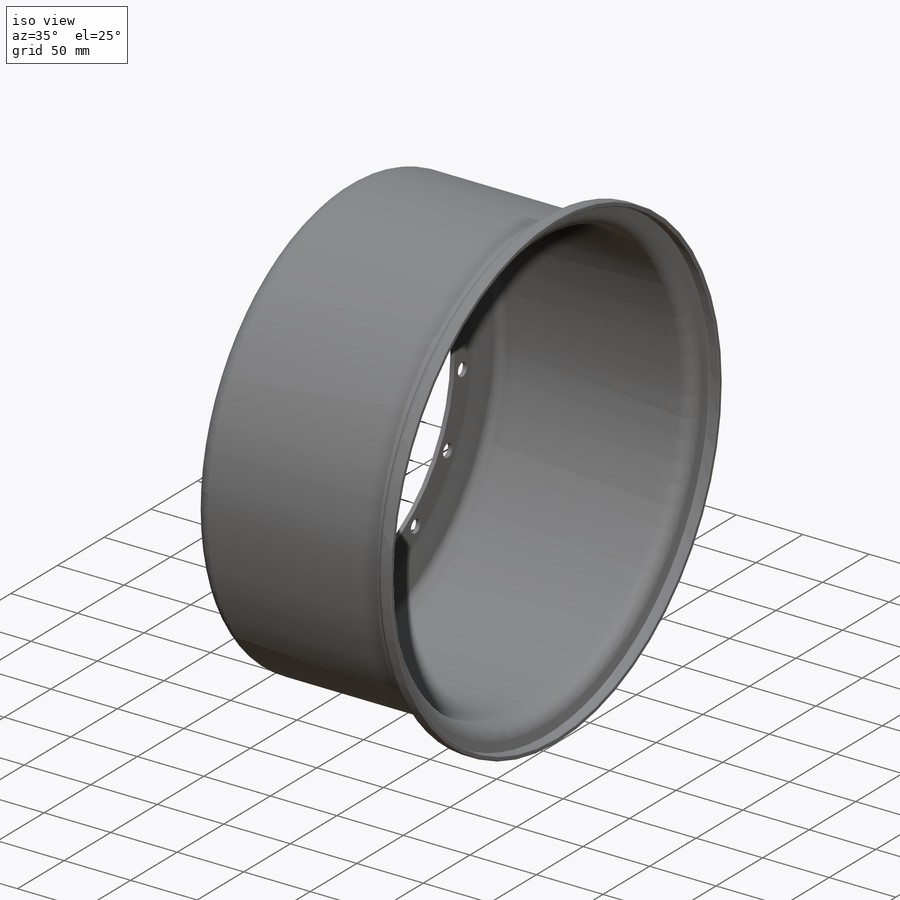
[diagram: iso view]
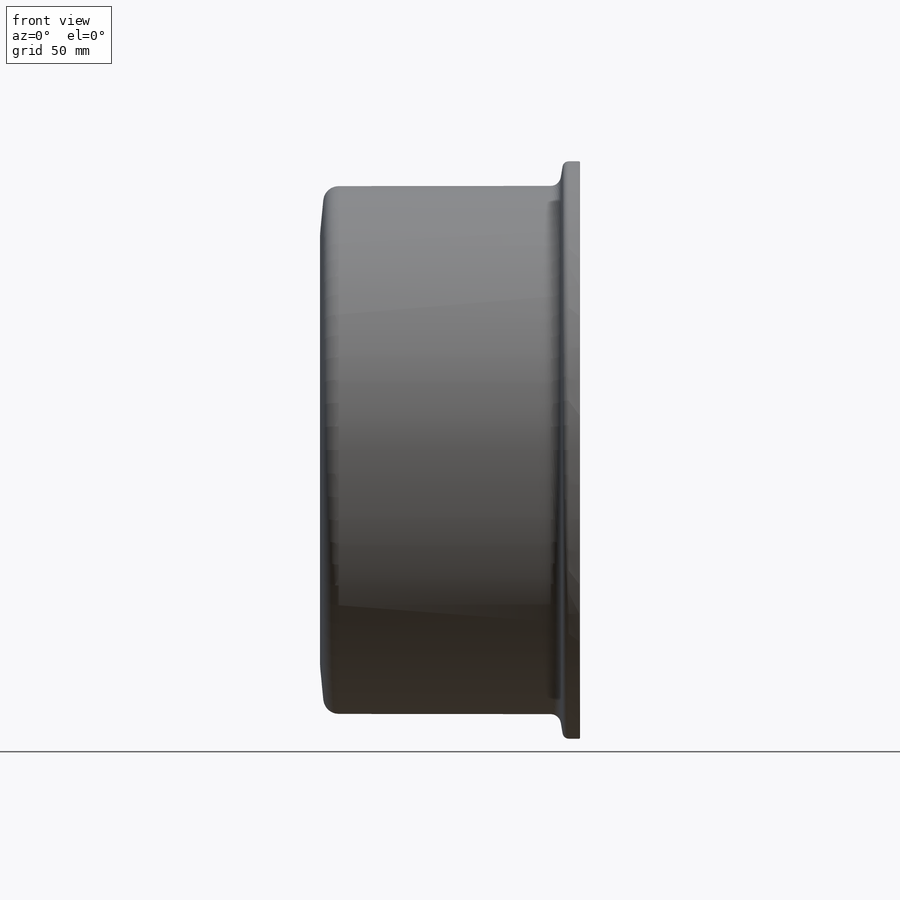
[diagram: front view]
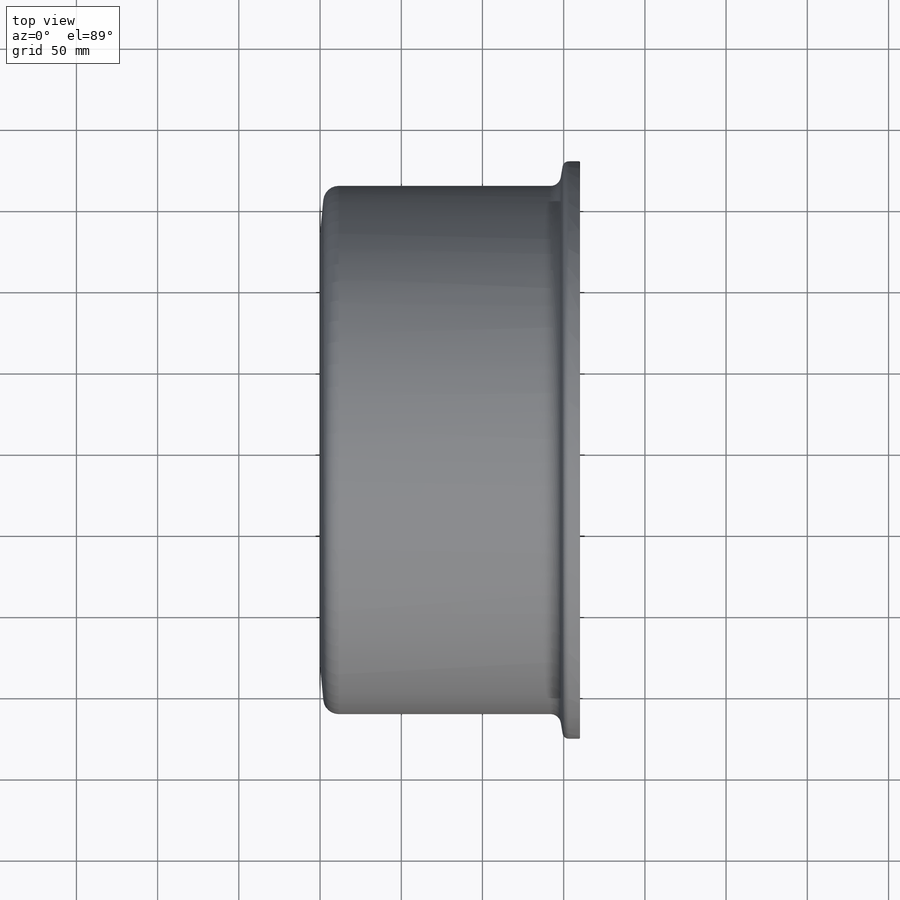
[diagram: top view]
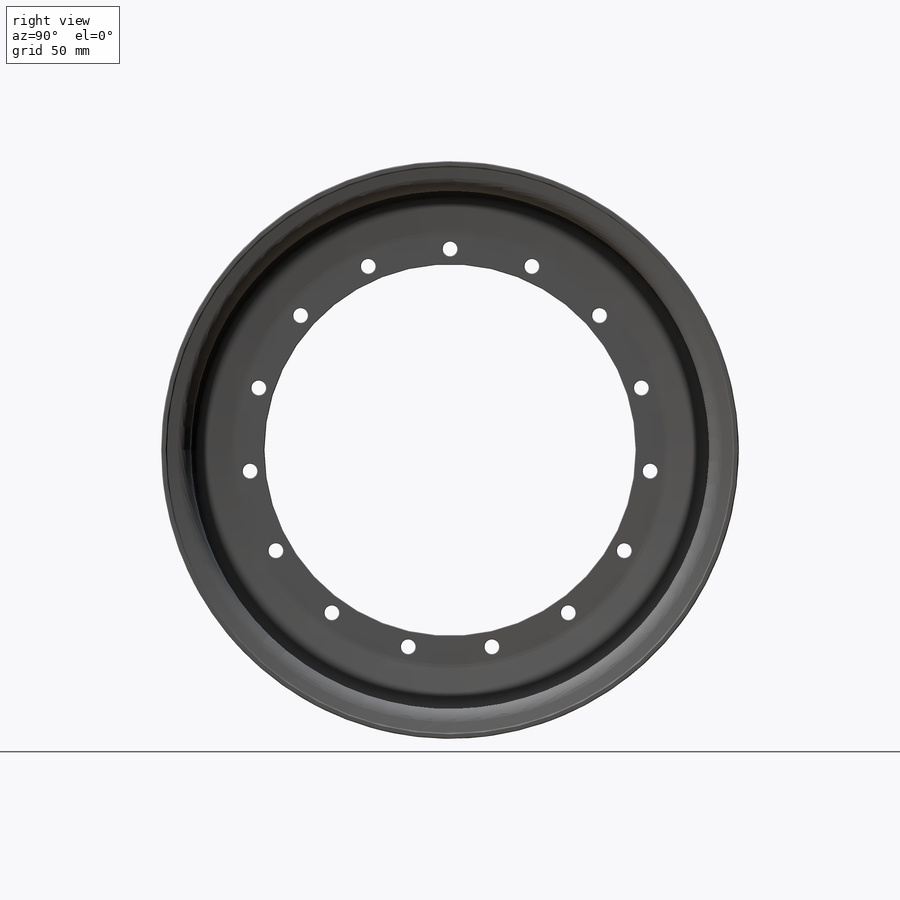
[diagram: right view]
SOLIDWORKS PART (.sldprt)
format: sldprt  version: not decoded by parser v0  size: 411,136 bytes
history: native  units: mm
features: sketch x2, material x1, revolve x1, cut_extrude x1, pattern_circular x1, chamfer x1 (+13 scaffold rows collapsed)
feature tree (20):
  scaffold x13  (default folders/planes/origin — collapsed)
  material  "6061-T6 (SS)"
  sketch  "Sketch1"  dims[c1.D4=~28.280696mm c1.D1=114.3mm c1.D2=3.175mm c1.D3=~34.95034mm c2.D3=174.46deg c2.D4=~2.45618mm c2.D5=~17.82064mm c2.D6=~19.56054mm c2.D7=~12.80414mm c2.D8=~130.45694mm c2.D9=8.2042mm c2.D10=~6.76402mm c2.D11=~6.76402mm c3.D11=99.52deg c3.D12=~4.92252mm c3.D13=~6.93674mm c3.D14=3.175mm c3.D2=114.3mm c3.D5=~17.82064mm c4.D14=3.175mm]
  revolve  "Outer Rim"  Angle=360deg
  sketch  "Sketch2"  dims[D2=~8.99668mm D1=9.525mm]
  cut_extrude  "Mounting Hole"  [1 undecoded]
  pattern_circular  "Mounting Hole Pattern"  Count=15 Angle=24deg
  chamfer  "Edge Chamfer"  Distance=0.39624mm Angle=45deg
decode coverage: 5 of 6 modeling features carry decoded parameters
note: ~ marks probable driven/reference dimensions
note: 1 parameter value undecoded
note: suppression state not decoded; provenance and decode notes live in map.json
